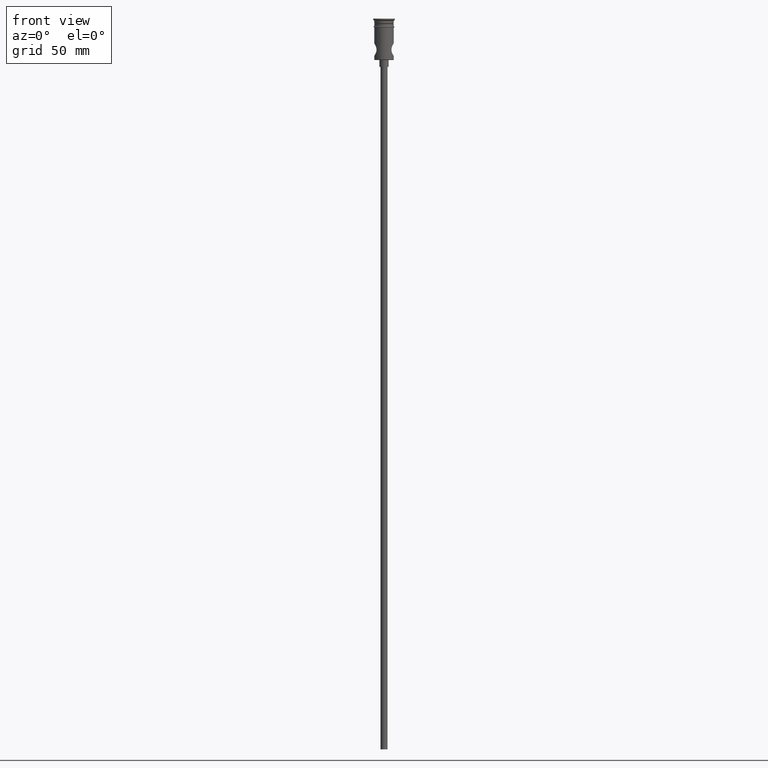
[diagram: clean part render]
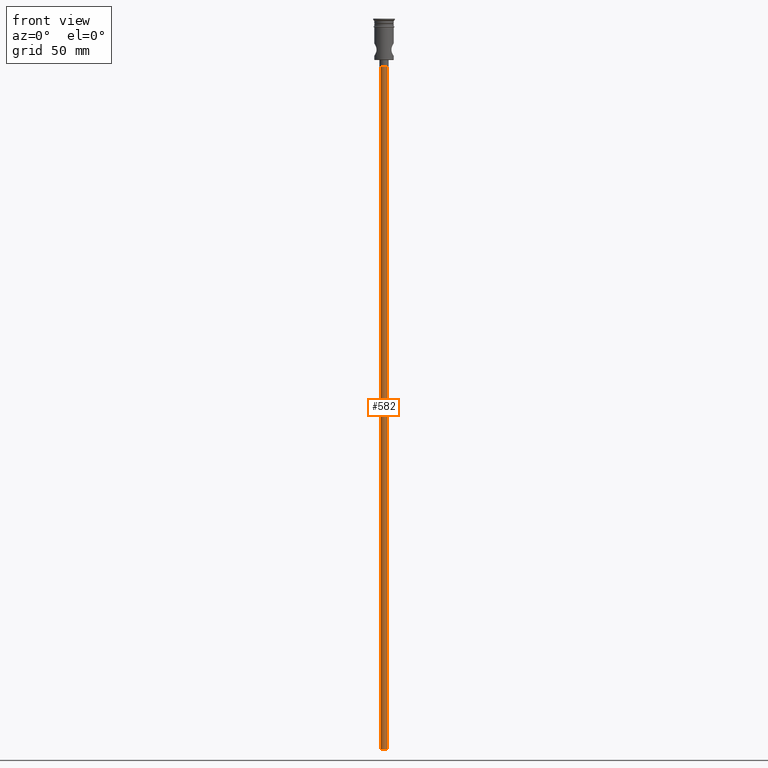
[diagram: same view with one face highlighted and labeled with its STEP entity id]
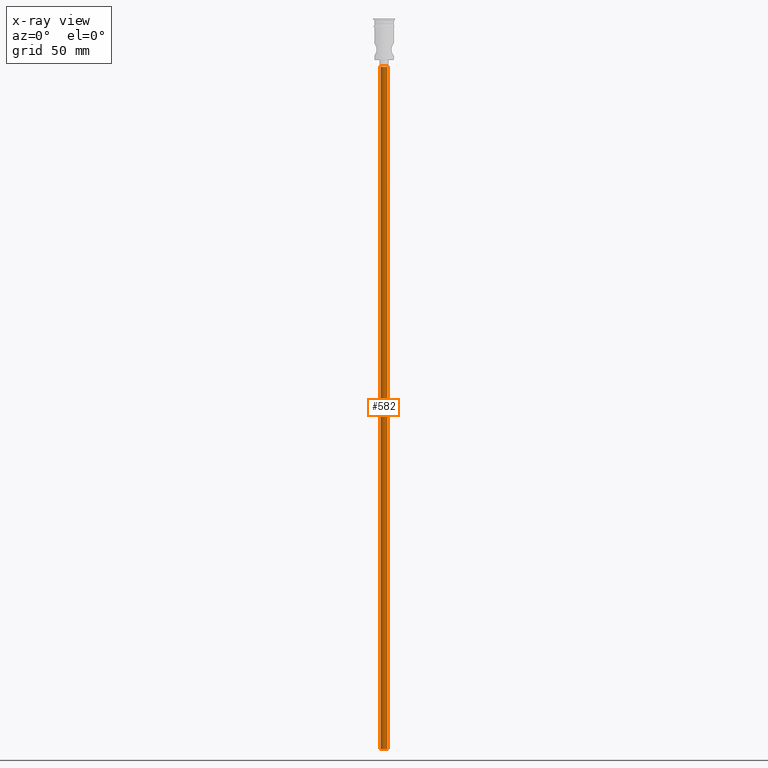
[diagram: x-ray of the same camera — body ghosted, the highlighted face saturated]
A machine part, front view. The second image highlights one B-rep face of the part: STEP entity #582.
The next image is the same camera in x-ray: the body ghosted, the highlighted face saturated — about 0% of this face is hidden behind the body in this view.
In plain terms, the highlighted cylindrical surface (edge-blend (fillet) strip) has radius 1.5 mm, axis along (-0, -0, 1).
Its self-contained STEP definition (entity closure, byte-faithful):
#2 = CARTESIAN_POINT ( 'NONE',  ( -1.500000000000000222, 1.836970198721030181E-16, -318.0000000000000000 ) ) ;
#5 = DIRECTION ( 'NONE',  ( -1.000000000000000000, 0.000000000000000000, 0.000000000000000000 ) ) ;
#61 = DIRECTION ( 'NONE',  ( -0.000000000000000000, -0.000000000000000000, 1.000000000000000000 ) ) ;
#67 = VECTOR ( 'NONE', #841, 1000.000000000000000 ) ;
#82 = CARTESIAN_POINT ( 'NONE',  ( -1.500000000000000222, 1.836970198721030181E-16, -20.99999999999999645 ) ) ;
#117 = CARTESIAN_POINT ( 'NONE',  ( 1.500000000000000222, 0.000000000000000000, -20.99999999999999645 ) ) ;
#135 = FACE_OUTER_BOUND ( 'NONE', #344, .T. ) ;
#142 = CARTESIAN_POINT ( 'NONE',  ( 0.000000000000000000, 0.000000000000000000, -318.0000000000000000 ) ) ;
#153 = AXIS2_PLACEMENT_3D ( 'NONE', #241, #693, #5 ) ;
#213 = ORIENTED_EDGE ( 'NONE', *, *, #1341, .T. ) ;
#241 = CARTESIAN_POINT ( 'NONE',  ( 0.000000000000000000, 0.000000000000000000, -318.0000000000000000 ) ) ;
#344 = EDGE_LOOP ( 'NONE', ( #1039, #1375, #583, #213 ) ) ;
#381 = VECTOR ( 'NONE', #61, 1000.000000000000000 ) ;
#388 = LINE ( 'NONE', #1276, #67 ) ;
#469 = CYLINDRICAL_SURFACE ( 'NONE', #710, 1.500000000000000222 ) ;
#536 = CARTESIAN_POINT ( 'NONE',  ( 0.000000000000000000, 0.000000000000000000, -20.99999999999999645 ) ) ;
#553 = VERTEX_POINT ( 'NONE', #988 ) ;
#582 = ADVANCED_FACE ( 'NONE', ( #135 ), #469, .T. ) ;
#583 = ORIENTED_EDGE ( 'NONE', *, *, #828, .T. ) ;
#594 = CARTESIAN_POINT ( 'NONE',  ( 1.500000000000000222, 0.000000000000000000, -318.0000000000000000 ) ) ;
#644 = EDGE_CURVE ( 'NONE', #553, #1396, #775, .T. ) ;
#662 = AXIS2_PLACEMENT_3D ( 'NONE', #536, #1093, #858 ) ;
#693 = DIRECTION ( 'NONE',  ( 0.000000000000000000, 0.000000000000000000, -1.000000000000000000 ) ) ;
#710 = AXIS2_PLACEMENT_3D ( 'NONE', #142, #1234, #882 ) ;
#775 = CIRCLE ( 'NONE', #153, 1.500000000000000222 ) ;
#803 = CIRCLE ( 'NONE', #662, 1.500000000000000222 ) ;
#828 = EDGE_CURVE ( 'NONE', #553, #1133, #949, .T. ) ;
#841 = DIRECTION ( 'NONE',  ( -0.000000000000000000, -0.000000000000000000, 1.000000000000000000 ) ) ;
#858 = DIRECTION ( 'NONE',  ( -1.000000000000000000, 0.000000000000000000, 0.000000000000000000 ) ) ;
#882 = DIRECTION ( 'NONE',  ( 1.000000000000000000, 0.000000000000000000, 0.000000000000000000 ) ) ;
#949 = LINE ( 'NONE', #594, #381 ) ;
#988 = CARTESIAN_POINT ( 'NONE',  ( 1.500000000000000222, 0.000000000000000000, -318.0000000000000000 ) ) ;
#1039 = ORIENTED_EDGE ( 'NONE', *, *, #1202, .F. ) ;
#1093 = DIRECTION ( 'NONE',  ( 0.000000000000000000, 0.000000000000000000, -1.000000000000000000 ) ) ;
#1133 = VERTEX_POINT ( 'NONE', #117 ) ;
#1202 = EDGE_CURVE ( 'NONE', #1396, #1316, #388, .T. ) ;
#1234 = DIRECTION ( 'NONE',  ( -0.000000000000000000, -0.000000000000000000, 1.000000000000000000 ) ) ;
#1276 = CARTESIAN_POINT ( 'NONE',  ( -1.500000000000000222, 1.836970198721030181E-16, -318.0000000000000000 ) ) ;
#1316 = VERTEX_POINT ( 'NONE', #82 ) ;
#1341 = EDGE_CURVE ( 'NONE', #1133, #1316, #803, .T. ) ;
#1375 = ORIENTED_EDGE ( 'NONE', *, *, #644, .F. ) ;
#1396 = VERTEX_POINT ( 'NONE', #2 ) ;